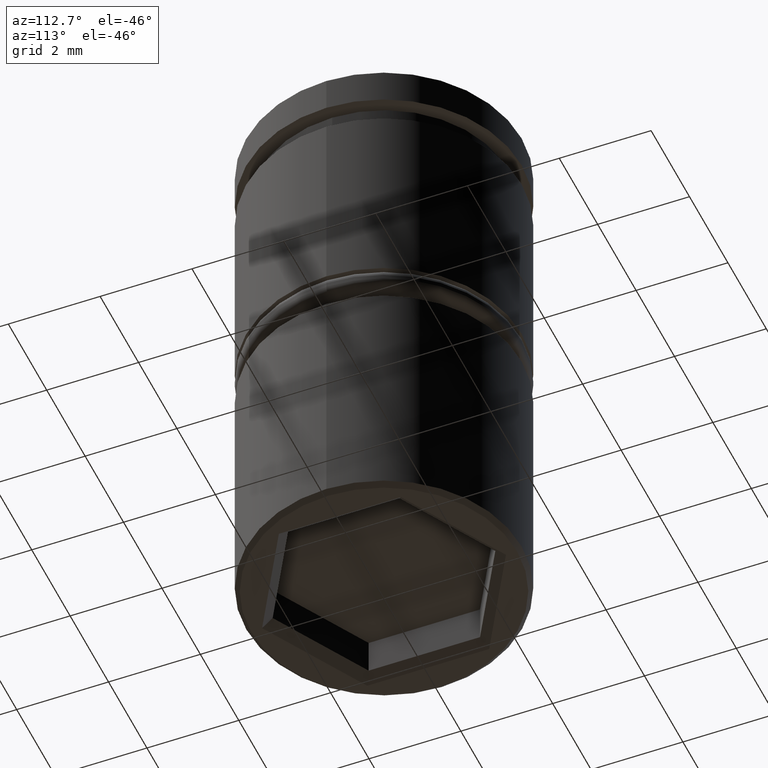
[diagram: clean part render]
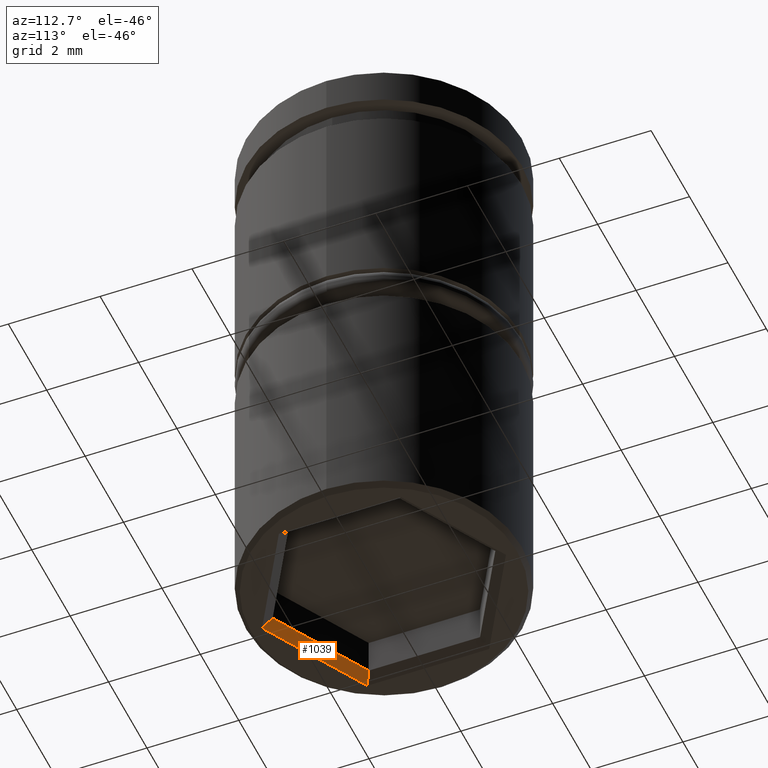
[diagram: same view with one face highlighted and labeled with its STEP entity id]
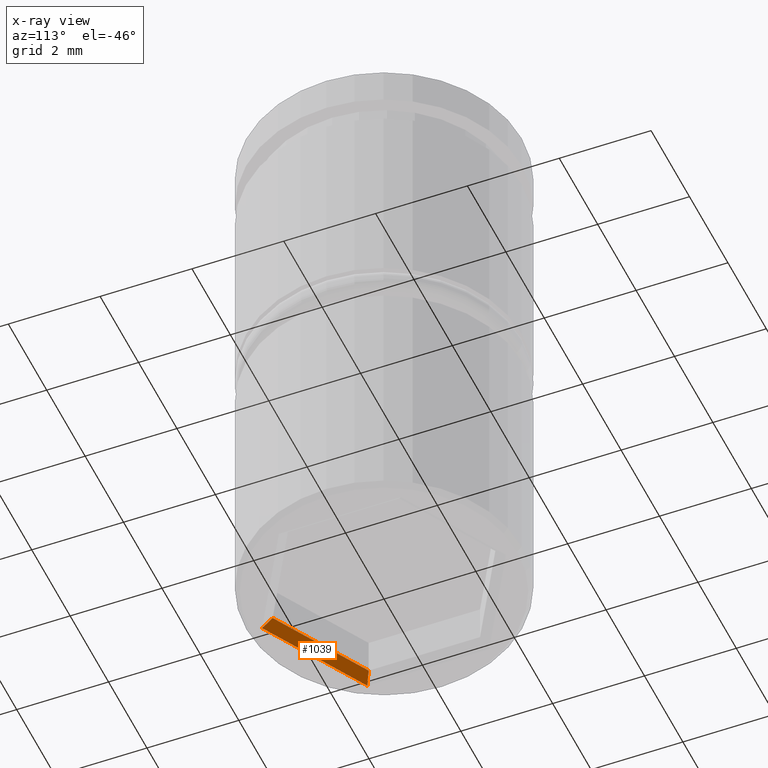
[diagram: x-ray of the same camera — body ghosted, the highlighted face saturated]
A machine part, auxiliary view. The second image highlights one B-rep face of the part: STEP entity #1039.
The next image is the same camera in x-ray: the body ghosted, the highlighted face saturated — about 0% of this face is hidden behind the body in this view.
In plain terms, the highlighted planar face has unit normal (0.3536, 0.6124, -0.7071).
Its self-contained STEP definition (entity closure, byte-faithful):
#7 = DIRECTION ( 'NONE',  ( 0.8660254037844385966, -0.5000000000000001110, 0.000000000000000000 ) ) ;
#12 = CARTESIAN_POINT ( 'NONE',  ( -0.1000000000000006856, -2.598076211353312903, -12.00000000000000000 ) ) ;
#21 = DIRECTION ( 'NONE',  ( -3.524848827571327511E-15, 0.7559289460184552834, 0.6546536707079761985 ) ) ;
#68 = VECTOR ( 'NONE', #21, 1000.000000000000000 ) ;
#86 = CARTESIAN_POINT ( 'NONE',  ( -2.299999999999997158, -1.327905619136137805, -12.00000000000000000 ) ) ;
#93 = LINE ( 'NONE', #12, #315 ) ;
#96 = DIRECTION ( 'NONE',  ( 0.8660254037844385966, -0.5000000000000000000, 0.000000000000000000 ) ) ;
#115 = LINE ( 'NONE', #942, #436 ) ;
#117 = VERTEX_POINT ( 'NONE', #86 ) ;
#177 = EDGE_CURVE ( 'NONE', #215, #608, #1095, .T. ) ;
#215 = VERTEX_POINT ( 'NONE', #1066 ) ;
#223 = DIRECTION ( 'NONE',  ( 0.6546536707079771977, 0.3779644730092270866, 0.6546536707079771977 ) ) ;
#235 = ORIENTED_EDGE ( 'NONE', *, *, #1132, .T. ) ;
#275 = VERTEX_POINT ( 'NONE', #601 ) ;
#315 = VECTOR ( 'NONE', #7, 1000.000000000000114 ) ;
#331 = ORIENTED_EDGE ( 'NONE', *, *, #952, .F. ) ;
#342 = DIRECTION ( 'NONE',  ( -0.8660254037844387076, 0.5000000000000001110, 0.000000000000000000 ) ) ;
#389 = ORIENTED_EDGE ( 'NONE', *, *, #1047, .F. ) ;
#397 = CARTESIAN_POINT ( 'NONE',  ( -2.099999999999996980, -1.212435565298212614, -11.79999999999999893 ) ) ;
#436 = VECTOR ( 'NONE', #223, 1000.000000000000000 ) ;
#477 = FACE_OUTER_BOUND ( 'NONE', #597, .T. ) ;
#550 = PLANE ( 'NONE',  #585 ) ;
#585 = AXIS2_PLACEMENT_3D ( 'NONE', #932, #843, #96 ) ;
#597 = EDGE_LOOP ( 'NONE', ( #235, #1016, #389, #331 ) ) ;
#601 = CARTESIAN_POINT ( 'NONE',  ( 4.012155603717831438E-16, -2.655811238272276054, -12.00000000000000000 ) ) ;
#608 = VERTEX_POINT ( 'NONE', #397 ) ;
#843 = DIRECTION ( 'NONE',  ( 0.3535533905932737864, 0.6123724356957945814, -0.7071067811865474617 ) ) ;
#918 = CARTESIAN_POINT ( 'NONE',  ( -2.099999999999996980, -1.212435565298212614, -11.79999999999999893 ) ) ;
#932 = CARTESIAN_POINT ( 'NONE',  ( -4.310144132208485433E-16, -2.424871130596424784, -11.79999999999999893 ) ) ;
#942 = CARTESIAN_POINT ( 'NONE',  ( -1.499999999999997335, -0.8660254037844378194, -11.19999999999999929 ) ) ;
#952 = EDGE_CURVE ( 'NONE', #117, #275, #93, .T. ) ;
#1016 = ORIENTED_EDGE ( 'NONE', *, *, #177, .F. ) ;
#1023 = CARTESIAN_POINT ( 'NONE',  ( -3.469446951953614189E-15, -1.732050807568878747, -11.20000000000000462 ) ) ;
#1039 = ADVANCED_FACE ( 'NONE', ( #477 ), #550, .T. ) ;
#1047 = EDGE_CURVE ( 'NONE', #275, #215, #1093, .T. ) ;
#1058 = VECTOR ( 'NONE', #342, 999.9999999999998863 ) ;
#1066 = CARTESIAN_POINT ( 'NONE',  ( -4.310144132208485433E-16, -2.424871130596424784, -11.79999999999999893 ) ) ;
#1093 = LINE ( 'NONE', #1023, #68 ) ;
#1095 = LINE ( 'NONE', #918, #1058 ) ;
#1132 = EDGE_CURVE ( 'NONE', #117, #608, #115, .T. ) ;